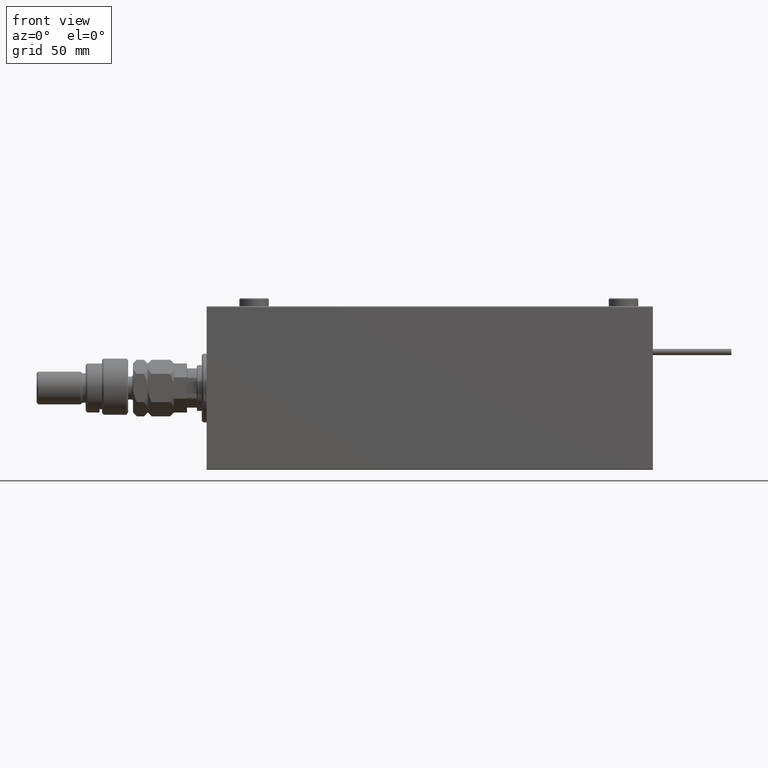
[diagram: clean part render]
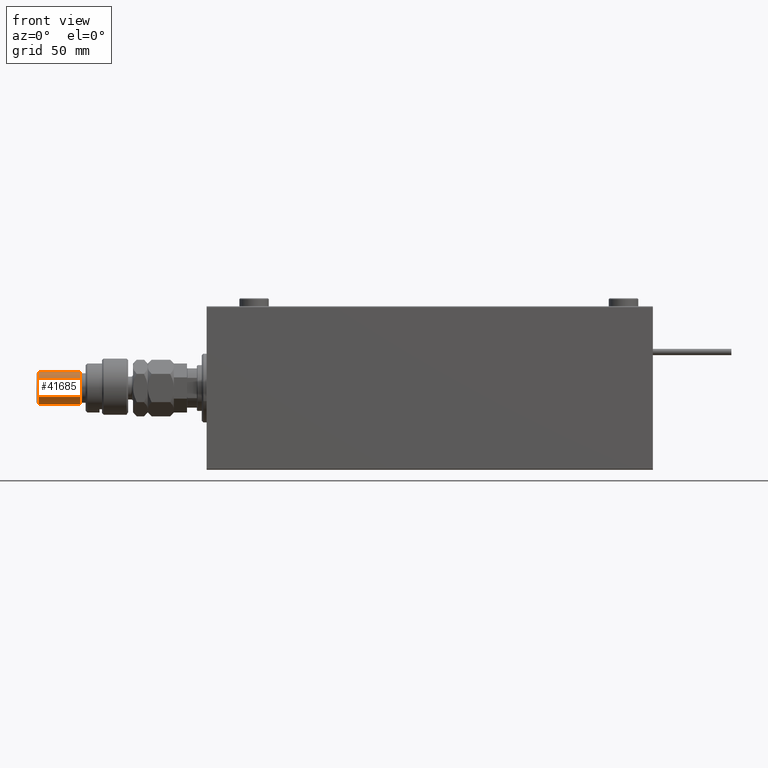
[diagram: same view with one face highlighted and labeled with its STEP entity id]
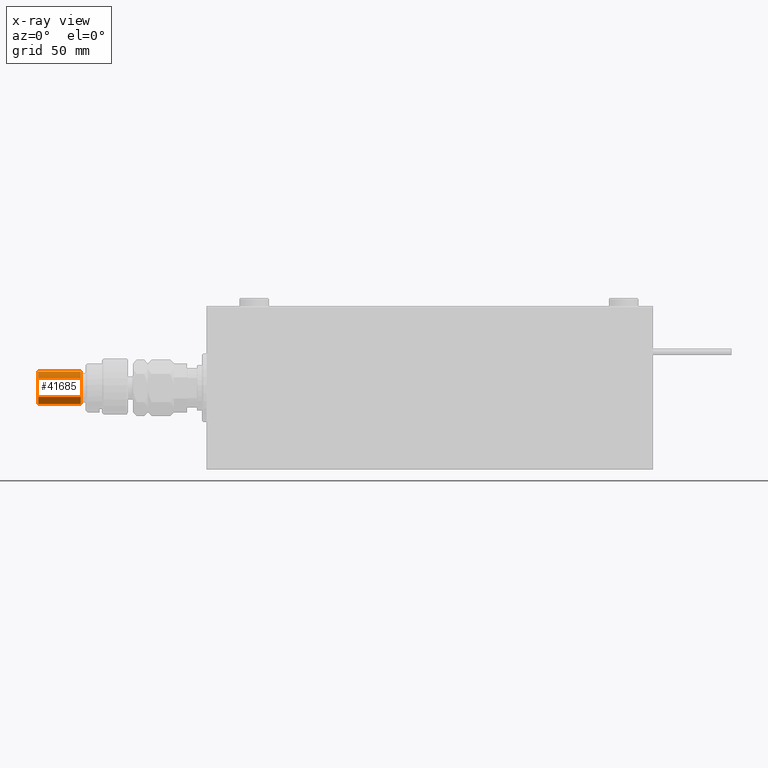
[diagram: x-ray of the same camera — body ghosted, the highlighted face saturated]
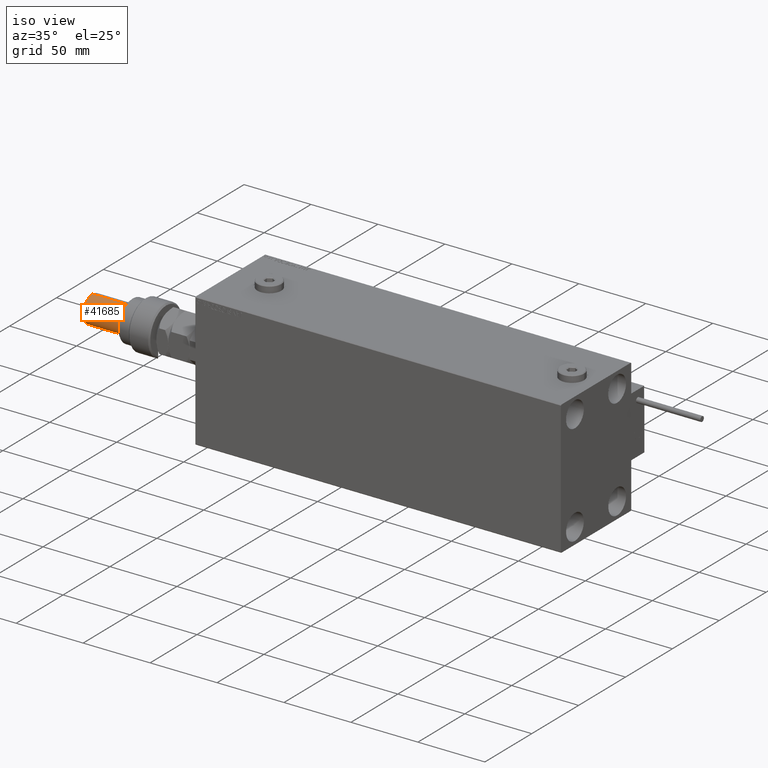
[diagram: same view with one face highlighted and labeled with its STEP entity id]
A machine part, front view. The second image highlights one B-rep face of the part: STEP entity #41685.
The next image is the same camera in x-ray: the body ghosted, the highlighted face saturated — about 0% of this face is hidden behind the body in this view.
A second angle (iso view) of the same face is appended — the face is thin or edge-on in the first view.
In plain terms, the highlighted cylindrical surface (edge-blend (fillet) strip) has radius 10 mm, axis along (1, -0, -0).
Its self-contained STEP definition (entity closure, byte-faithful):
#1723 = ORIENTED_EDGE ( 'NONE', *, *, #32216, .F. ) ;
#3633 = VERTEX_POINT ( 'NONE', #37952 ) ;
#6773 = DIRECTION ( 'NONE',  ( -1.000000000000000000, 0.000000000000000000, 0.000000000000000000 ) ) ;
#6906 = AXIS2_PLACEMENT_3D ( 'NONE', #19455, #10354, #6773 ) ;
#7627 = CARTESIAN_POINT ( 'NONE',  ( 10.00000000000000000, 1.224646799147353256E-15, 54.99999999999998579 ) ) ;
#7871 = DIRECTION ( 'NONE',  ( -0.000000000000000000, -0.000000000000000000, -1.000000000000000000 ) ) ;
#9116 = EDGE_LOOP ( 'NONE', ( #1723, #20841, #50666, #38509 ) ) ;
#9870 = CARTESIAN_POINT ( 'NONE',  ( -10.00000000000000000, 0.000000000000000000, 56.00000000000000711 ) ) ;
#10354 = DIRECTION ( 'NONE',  ( -0.000000000000000000, -0.000000000000000000, -1.000000000000000000 ) ) ;
#10400 = VERTEX_POINT ( 'NONE', #19479 ) ;
#10545 = AXIS2_PLACEMENT_3D ( 'NONE', #19543, #40761, #45440 ) ;
#12395 = VERTEX_POINT ( 'NONE', #7627 ) ;
#15993 = CIRCLE ( 'NONE', #21261, 10.00000000000000000 ) ;
#17588 = CIRCLE ( 'NONE', #10545, 10.00000000000000000 ) ;
#18093 = DIRECTION ( 'NONE',  ( 1.000000000000000000, 0.000000000000000000, 0.000000000000000000 ) ) ;
#19455 = CARTESIAN_POINT ( 'NONE',  ( 0.000000000000000000, 0.000000000000000000, 56.00000000000000711 ) ) ;
#19479 = CARTESIAN_POINT ( 'NONE',  ( -10.00000000000000000, 0.000000000000000000, 54.99999999999998579 ) ) ;
#19543 = CARTESIAN_POINT ( 'NONE',  ( 0.000000000000000000, 0.000000000000000000, 54.99999999999998579 ) ) ;
#20841 = ORIENTED_EDGE ( 'NONE', *, *, #44522, .T. ) ;
#21261 = AXIS2_PLACEMENT_3D ( 'NONE', #25288, #46500, #18093 ) ;
#22822 = LINE ( 'NONE', #9870, #29031 ) ;
#23910 = EDGE_CURVE ( 'NONE', #3633, #29437, #15993, .T. ) ;
#24690 = LINE ( 'NONE', #40977, #37300 ) ;
#25288 = CARTESIAN_POINT ( 'NONE',  ( 0.000000000000000000, 0.000000000000000000, 29.00000000000000711 ) ) ;
#29031 = VECTOR ( 'NONE', #42705, 1000.000000000000000 ) ;
#29437 = VERTEX_POINT ( 'NONE', #36177 ) ;
#31853 = FACE_OUTER_BOUND ( 'NONE', #9116, .T. ) ;
#32216 = EDGE_CURVE ( 'NONE', #12395, #29437, #24690, .T. ) ;
#36177 = CARTESIAN_POINT ( 'NONE',  ( 10.00000000000000000, 1.224646799147353256E-15, 29.00000000000000711 ) ) ;
#37300 = VECTOR ( 'NONE', #7871, 1000.000000000000000 ) ;
#37952 = CARTESIAN_POINT ( 'NONE',  ( -10.00000000000000000, 0.000000000000000000, 29.00000000000000711 ) ) ;
#38509 = ORIENTED_EDGE ( 'NONE', *, *, #23910, .T. ) ;
#40761 = DIRECTION ( 'NONE',  ( 0.000000000000000000, 0.000000000000000000, -1.000000000000000000 ) ) ;
#40977 = CARTESIAN_POINT ( 'NONE',  ( 10.00000000000000000, 1.224646799147353256E-15, 56.00000000000000711 ) ) ;
#41685 = ADVANCED_FACE ( 'NONE', ( #31853 ), #48116, .T. ) ;
#42705 = DIRECTION ( 'NONE',  ( -0.000000000000000000, -0.000000000000000000, -1.000000000000000000 ) ) ;
#44522 = EDGE_CURVE ( 'NONE', #12395, #10400, #17588, .T. ) ;
#45440 = DIRECTION ( 'NONE',  ( 1.000000000000000000, 0.000000000000000000, 0.000000000000000000 ) ) ;
#46500 = DIRECTION ( 'NONE',  ( -0.000000000000000000, -0.000000000000000000, 1.000000000000000000 ) ) ;
#48044 = EDGE_CURVE ( 'NONE', #10400, #3633, #22822, .T. ) ;
#48116 = CYLINDRICAL_SURFACE ( 'NONE', #6906, 10.00000000000000000 ) ;
#50666 = ORIENTED_EDGE ( 'NONE', *, *, #48044, .T. ) ;